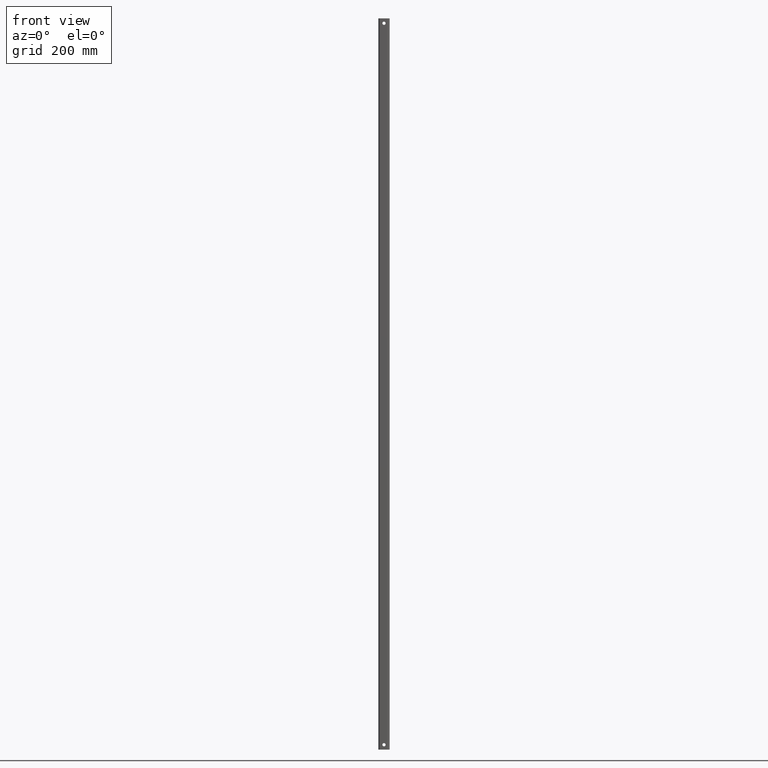
[diagram: clean part render]
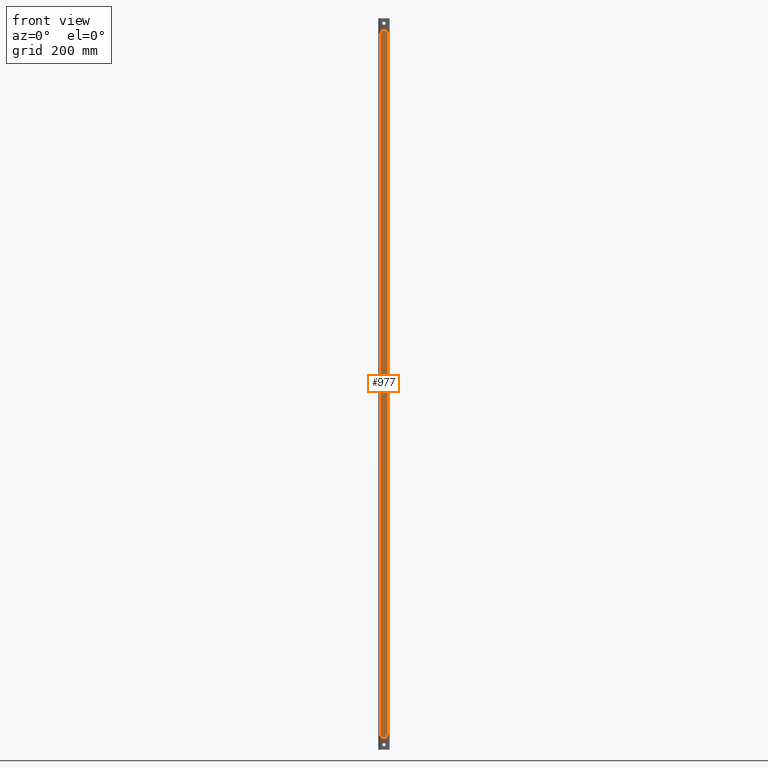
[diagram: same view with one face highlighted and labeled with its STEP entity id]
A machine part, front view. The second image highlights one B-rep face of the part: STEP entity #977.
In plain terms, the highlighted planar face has unit normal (0, 1, -0).
Its self-contained STEP definition (entity closure, byte-faithful):
#20=LINE('',#1486,#108);
#21=LINE('',#1491,#109);
#22=LINE('',#1495,#110);
#23=LINE('',#1499,#111);
#108=VECTOR('',#1176,1000.);
#109=VECTOR('',#1179,1000.);
#110=VECTOR('',#1182,1000.);
#111=VECTOR('',#1185,1000.);
#230=ORIENTED_EDGE('',*,*,#516,.F.);
#231=ORIENTED_EDGE('',*,*,#517,.T.);
#232=ORIENTED_EDGE('',*,*,#518,.F.);
#233=ORIENTED_EDGE('',*,*,#519,.T.);
#234=ORIENTED_EDGE('',*,*,#520,.F.);
#235=ORIENTED_EDGE('',*,*,#521,.T.);
#236=ORIENTED_EDGE('',*,*,#522,.F.);
#237=ORIENTED_EDGE('',*,*,#523,.T.);
#516=EDGE_CURVE('',#660,#661,#20,.T.);
#517=EDGE_CURVE('',#660,#662,#756,.T.);
#518=EDGE_CURVE('',#663,#662,#21,.T.);
#519=EDGE_CURVE('',#663,#664,#757,.T.);
#520=EDGE_CURVE('',#665,#664,#22,.T.);
#521=EDGE_CURVE('',#665,#666,#758,.T.);
#522=EDGE_CURVE('',#667,#666,#23,.T.);
#523=EDGE_CURVE('',#667,#661,#759,.T.);
#660=VERTEX_POINT('',#1487);
#661=VERTEX_POINT('',#1488);
#662=VERTEX_POINT('',#1490);
#663=VERTEX_POINT('',#1492);
#664=VERTEX_POINT('',#1494);
#665=VERTEX_POINT('',#1496);
#666=VERTEX_POINT('',#1498);
#667=VERTEX_POINT('',#1500);
#756=CIRCLE('',#1052,5.);
#757=CIRCLE('',#1053,5.);
#758=CIRCLE('',#1054,5.);
#759=CIRCLE('',#1055,5.);
#814=EDGE_LOOP('',(#230,#231,#232,#233,#234,#235,#236,#237));
#882=FACE_BOUND('',#814,.T.);
#946=PLANE('',#1051);
#977=ADVANCED_FACE('',(#882),#946,.F.);
#1051=AXIS2_PLACEMENT_3D('',#1485,#1174,#1175);
#1052=AXIS2_PLACEMENT_3D('',#1489,#1177,#1178);
#1053=AXIS2_PLACEMENT_3D('',#1493,#1180,#1181);
#1054=AXIS2_PLACEMENT_3D('',#1497,#1183,#1184);
#1055=AXIS2_PLACEMENT_3D('',#1501,#1186,#1187);
#1174=DIRECTION('',(4.06163832661068E-16,1.,-3.32494788514936E-15));
#1175=DIRECTION('',(-1.,4.06163832661068E-16,6.76398658185478E-32));
#1176=DIRECTION('',(-8.93686180177302E-17,-1.66533453693773E-16,1.));
#1177=DIRECTION('',(-4.06163832661068E-16,-1.,-1.66533453693773E-16));
#1178=DIRECTION('',(-1.,4.06163832661068E-16,-8.93686180177302E-17));
#1179=DIRECTION('',(-1.,4.06163832661068E-16,-8.93686180177302E-17));
#1180=DIRECTION('',(-4.06163832661068E-16,-1.,-1.66533453693773E-16));
#1181=DIRECTION('',(-1.,4.06163832661068E-16,-8.93686180177302E-17));
#1182=DIRECTION('',(8.93686180177302E-17,1.66533453693773E-16,-1.));
#1183=DIRECTION('',(-4.06163832661068E-16,-1.,-1.66533453693773E-16));
#1184=DIRECTION('',(-1.,4.06163832661068E-16,-8.93686180177302E-17));
#1185=DIRECTION('',(1.,-4.06163832661068E-16,8.93686180177302E-17));
#1186=DIRECTION('',(-4.06163832661068E-16,-1.,-1.66533453693773E-16));
#1187=DIRECTION('',(-1.,4.06163832661068E-16,-8.93686180177302E-17));
#1485=CARTESIAN_POINT('',(4.05776737694852E-15,-23.0000000000003,-3.28184349361263E-14));
#1486=CARTESIAN_POINT('',(-6.00000000000002,-23.,-4.00565866005999E-15));
#1487=CARTESIAN_POINT('',(-5.99999999999996,-22.9999999999999,-720.));
#1488=CARTESIAN_POINT('',(-6.00000000000008,-23.0000000000001,720.));
#1489=CARTESIAN_POINT('',(-0.999999999999969,-22.9999999999999,-720.));
#1490=CARTESIAN_POINT('',(-0.999999999999969,-22.9999999999999,-725.));
#1491=CARTESIAN_POINT('',(4.17363788970057E-14,-22.9999999999999,-725.));
#1492=CARTESIAN_POINT('',(1.00000000000004,-22.9999999999999,-725.));
#1493=CARTESIAN_POINT('',(1.00000000000003,-22.9999999999999,-720.));
#1494=CARTESIAN_POINT('',(6.00000000000005,-22.9999999999999,-720.));
#1495=CARTESIAN_POINT('',(5.99999999999998,-23.,-2.93323524384723E-15));
#1496=CARTESIAN_POINT('',(5.99999999999995,-23.0000000000001,720.));
#1497=CARTESIAN_POINT('',(0.999999999999953,-23.0000000000001,720.));
#1498=CARTESIAN_POINT('',(0.999999999999952,-23.0000000000001,725.));
#1499=CARTESIAN_POINT('',(-3.71145659333725E-14,-23.0000000000001,725.));
#1500=CARTESIAN_POINT('',(-1.00000000000005,-23.0000000000001,725.));
#1501=CARTESIAN_POINT('',(-1.00000000000005,-23.0000000000001,720.));